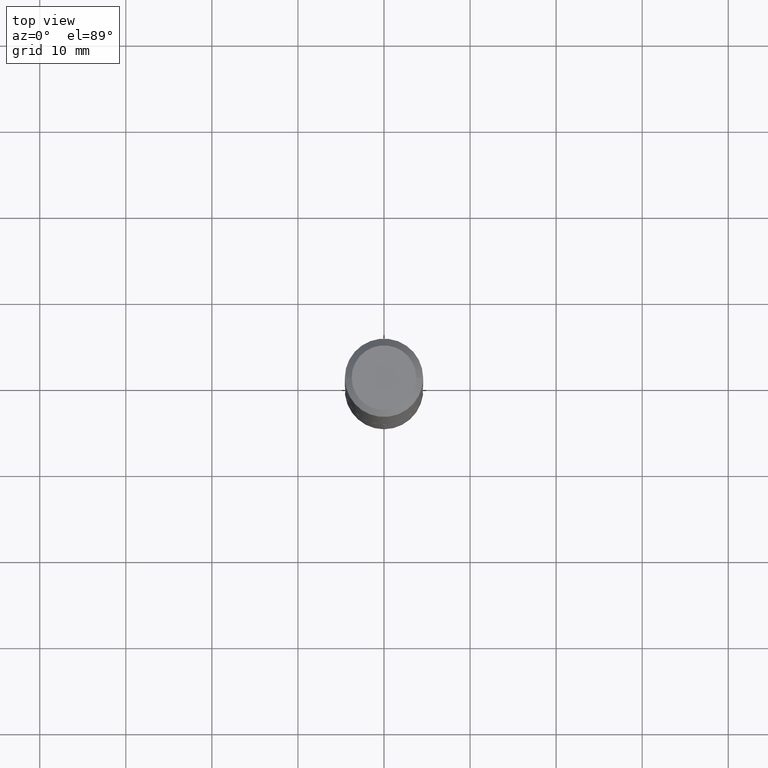
[diagram: clean part render]
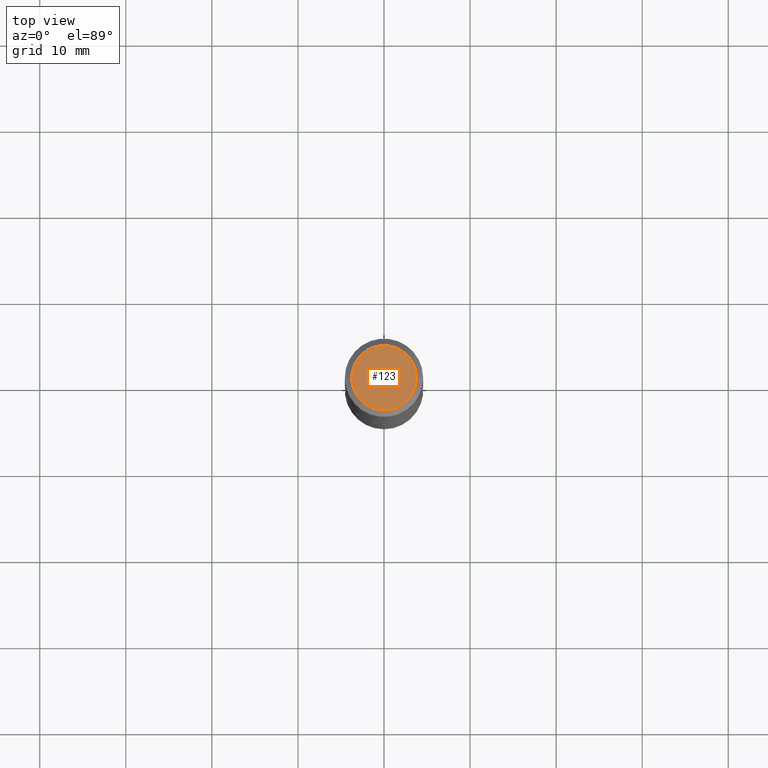
[diagram: same view with one face highlighted and labeled with its STEP entity id]
A machine part, top view. The second image highlights one B-rep face of the part: STEP entity #123.
In plain terms, the highlighted planar face has unit normal (0, -0, -1).
Its self-contained STEP definition (entity closure, byte-faithful):
#14 = DIRECTION ( 'NONE',  ( 2.438088387897960049E-29, -3.491481338843145188E-15, -1.000000000000000000 ) ) ;
#30 = CIRCLE ( 'NONE', #192, 0.1479000000000000037 ) ;
#81 = DIRECTION ( 'NONE',  ( 1.000000000000000000, -6.982962677686267499E-15, 4.876180342865737915E-29 ) ) ;
#89 = EDGE_LOOP ( 'NONE', ( #212, #158 ) ) ;
#112 = CARTESIAN_POINT ( 'NONE',  ( -1.182960040634198066E-47, 1.688953421129324663E-33, 4.837354856632103020E-19 ) ) ;
#122 = CIRCLE ( 'NONE', #343, 0.1479000000000000037 ) ;
#123 = ADVANCED_FACE ( 'NONE', ( #380 ), #378, .F. ) ;
#132 = DIRECTION ( 'NONE',  ( 1.000000000000000000, -6.982962677686267499E-15, 4.876180342865737915E-29 ) ) ;
#133 = EDGE_CURVE ( 'NONE', #208, #303, #122, .T. ) ;
#158 = ORIENTED_EDGE ( 'NONE', *, *, #133, .T. ) ;
#192 = AXIS2_PLACEMENT_3D ( 'NONE', #112, #351, #81 ) ;
#193 = CARTESIAN_POINT ( 'NONE',  ( -5.914800203170990329E-48, 8.444767105646623317E-34, 2.418677428316051510E-19 ) ) ;
#197 = CARTESIAN_POINT ( 'NONE',  ( -1.182960040634198066E-47, 1.688953421129324663E-33, 4.837354856632103020E-19 ) ) ;
#208 = VERTEX_POINT ( 'NONE', #390 ) ;
#212 = ORIENTED_EDGE ( 'NONE', *, *, #304, .T. ) ;
#256 = DIRECTION ( 'NONE',  ( -1.000000000000000000, 6.982962677686265922E-15, -4.876176775795935793E-29 ) ) ;
#303 = VERTEX_POINT ( 'NONE', #383 ) ;
#304 = EDGE_CURVE ( 'NONE', #303, #208, #30, .T. ) ;
#343 = AXIS2_PLACEMENT_3D ( 'NONE', #197, #381, #132 ) ;
#351 = DIRECTION ( 'NONE',  ( -2.445468806185136597E-29, 3.491481338843145583E-15, 1.000000000000000000 ) ) ;
#378 = PLANE ( 'NONE',  #382 ) ;
#380 = FACE_OUTER_BOUND ( 'NONE', #89, .T. ) ;
#381 = DIRECTION ( 'NONE',  ( -2.445468806185136597E-29, 3.491481338843145583E-15, 1.000000000000000000 ) ) ;
#382 = AXIS2_PLACEMENT_3D ( 'NONE', #193, #14, #256 ) ;
#383 = CARTESIAN_POINT ( 'NONE',  ( -0.1479000000000000037, 1.087334575949222546E-15, 4.837354856557970125E-19 ) ) ;
#390 = CARTESIAN_POINT ( 'NONE',  ( 0.1479000000000000037, -1.176417331005014297E-15, 4.837354856709345330E-19 ) ) ;